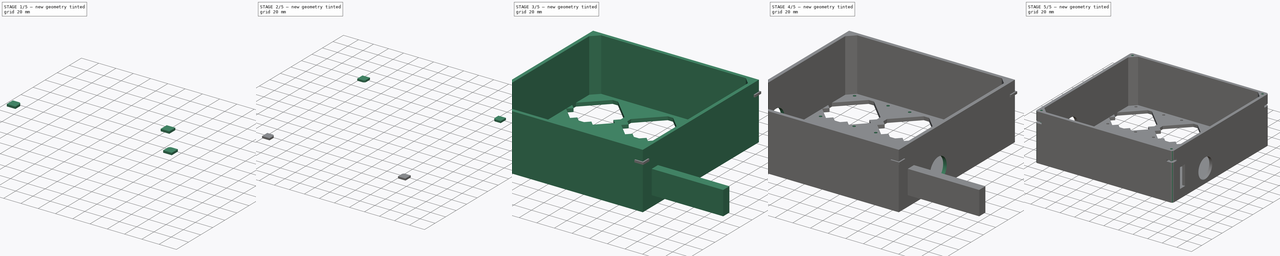
[diagram: build sequence overview — one tinted view per stage of 5, left to right]
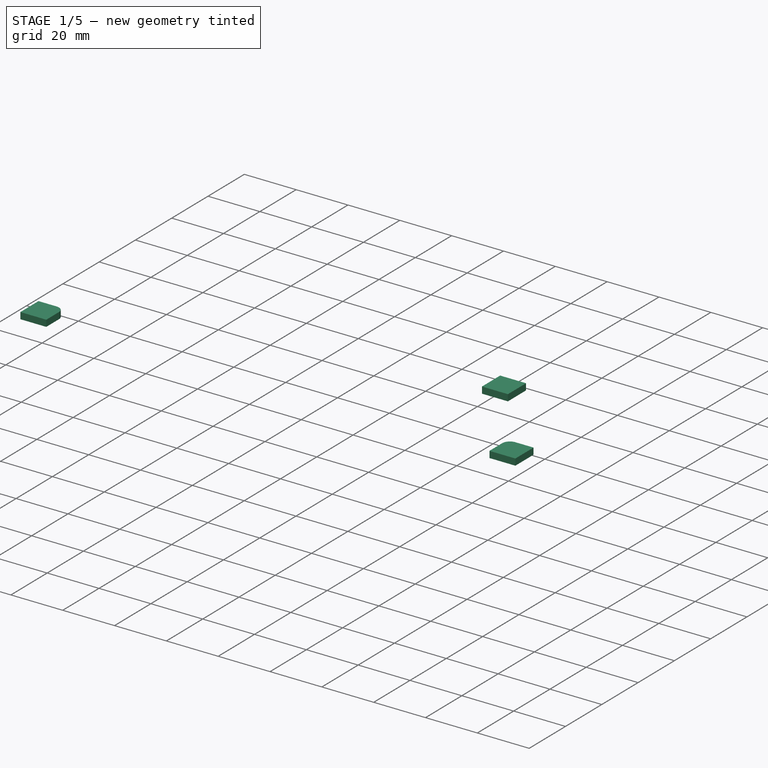
[diagram: stage 1 of 5 — iso view after this stage's code; geometry added in this stage tinted green]
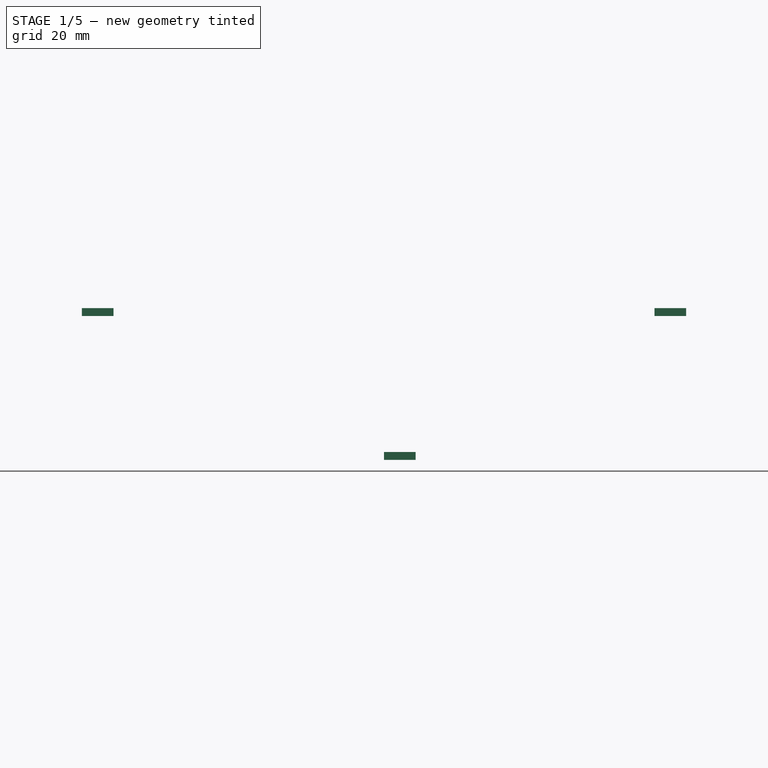
[diagram: stage 1 of 5 — front view after this stage's code; geometry added in this stage tinted green]
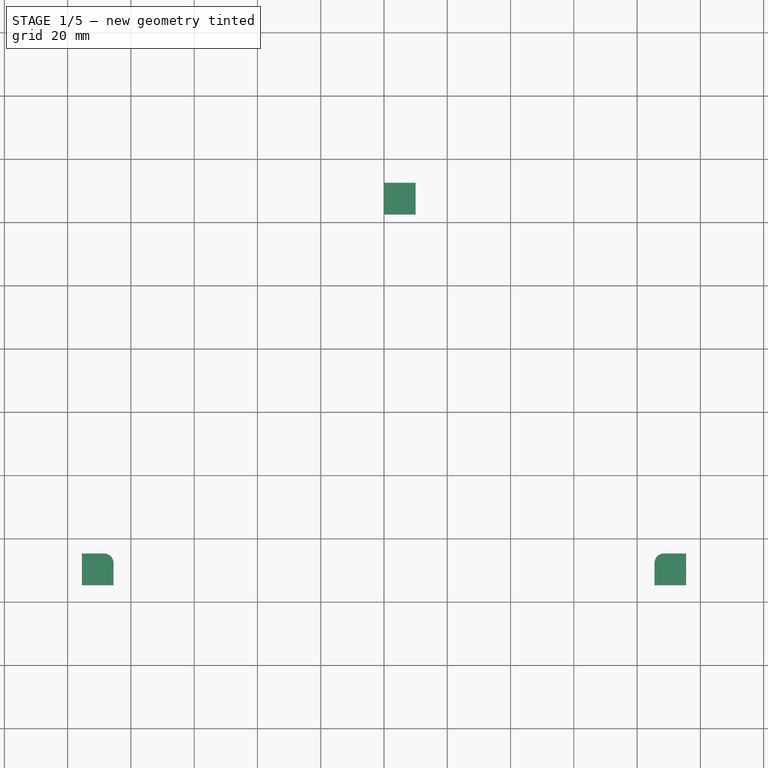
[diagram: stage 1 of 5 — top view after this stage's code; geometry added in this stage tinted green]
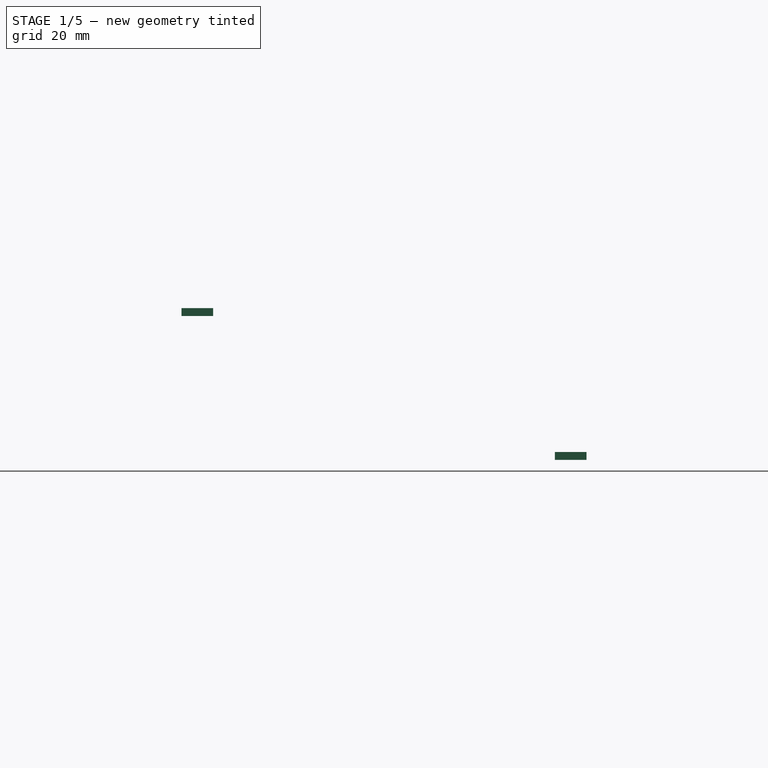
[diagram: stage 1 of 5 — right view after this stage's code; geometry added in this stage tinted green]
FCSTD DOCUMENT  (FreeCAD 0.21R33771 (Git))
Label: pumps-box-v1.0
License: All rights reserved
LicenseURL: https://en.wikipedia.org/wiki/All_rights_reserved
objects: Sketcher::SketchObject×9, PartDesign::Pocket×8, Part::Box×5, Part::Fillet×4, Part::MultiFuse×3, Part::Cut×2, PartDesign::Pad×1, PartDesign::Thickness×1, PartDesign::Chamfer×1, PartDesign::Hole×1, PartDesign::Draft×1, PartDesign::Fillet×1, PartDesign::Body×1
note: 52 computed .brp shape members not serialized (recipe doc carries the construction recipe); baked Part::Feature solids carry a one-line shape summary decoded from their .brp

FEATURE [Part::Box] Box001  label="Cube"
  AttacherType = Attacher::AttachEngine3D
  Height = 2.5
  Length = 10
  Placement = pos=(-23.5,0,0) rot=(0,0,1;0rad)
  Width = 10
FEATURE [Part::Box] Box002  label="Cube001"
  AttacherType = Attacher::AttachEngine3D
  Height = 2.5
  Length = 10
  Placement = pos=(0,22.5,0) rot=(0,0,1;0rad)
  Width = 10
FEATURE [Part::Box] Box004  label="Cube003"
  AttacherType = Attacher::AttachEngine3D
  Height = 2.5
  Length = 10
  Width = 10
FEATURE [Part::Fillet] Fillet001
  Base = -> Box001
  Edges = 1 edges r=3: [Edge7]
  Placement = pos=(-72,-95.5,45.5) rot=(0,0,1;0rad)
FEATURE [Part::Fillet] Fillet002
  Base = -> Box004
  Edges = 1 edges r=3: [Edge3]
  Placement = pos=(85.5,-95.5,45.5) rot=(0,0,1;0rad)
FEATURE [Part::MultiFuse] Fusion
  Shapes = -> [Fillet001,Fillet002]
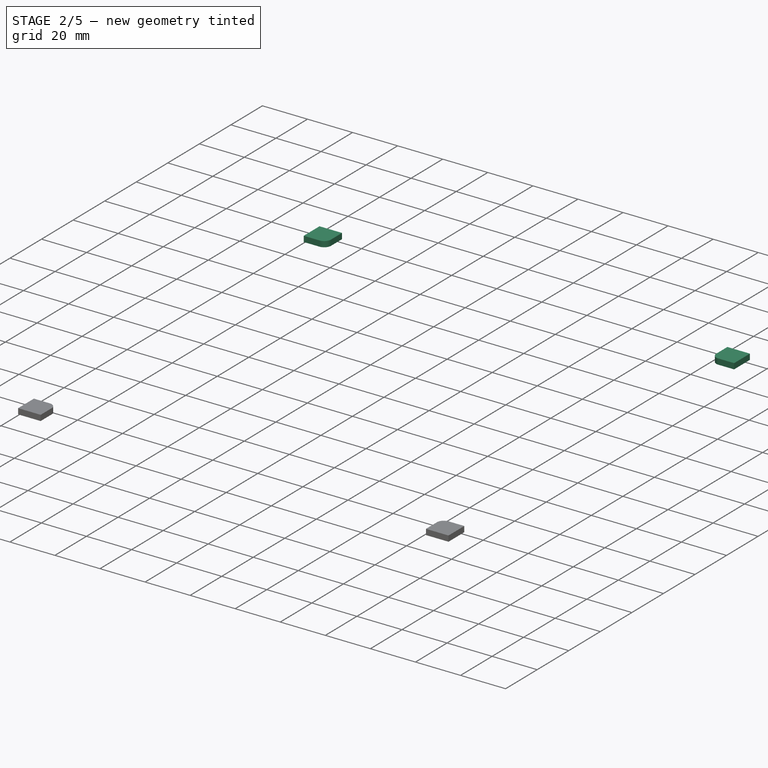
[diagram: stage 2 of 5 — iso view after this stage's code; geometry added in this stage tinted green]
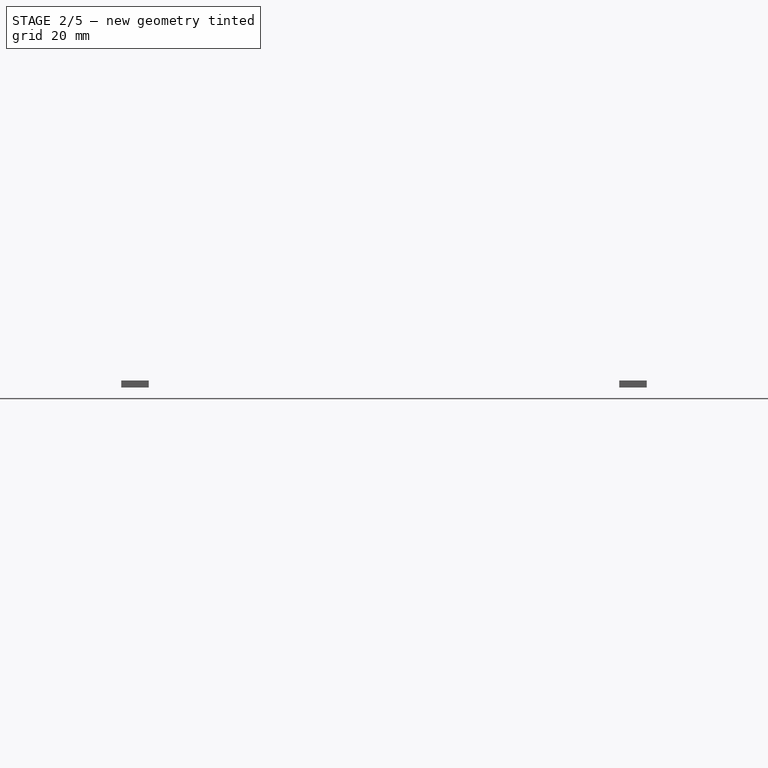
[diagram: stage 2 of 5 — front view after this stage's code; geometry added in this stage tinted green]
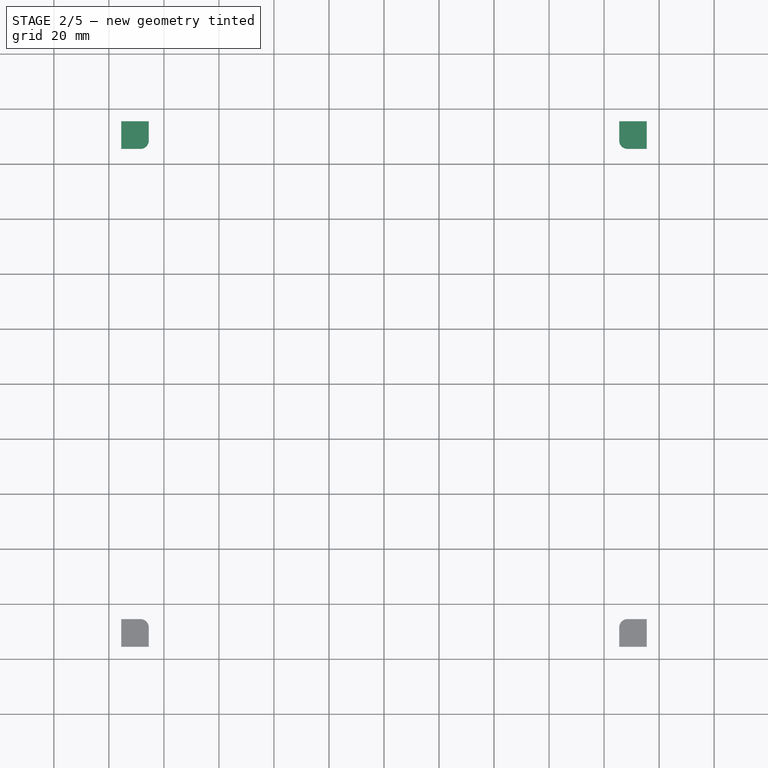
[diagram: stage 2 of 5 — top view after this stage's code; geometry added in this stage tinted green]
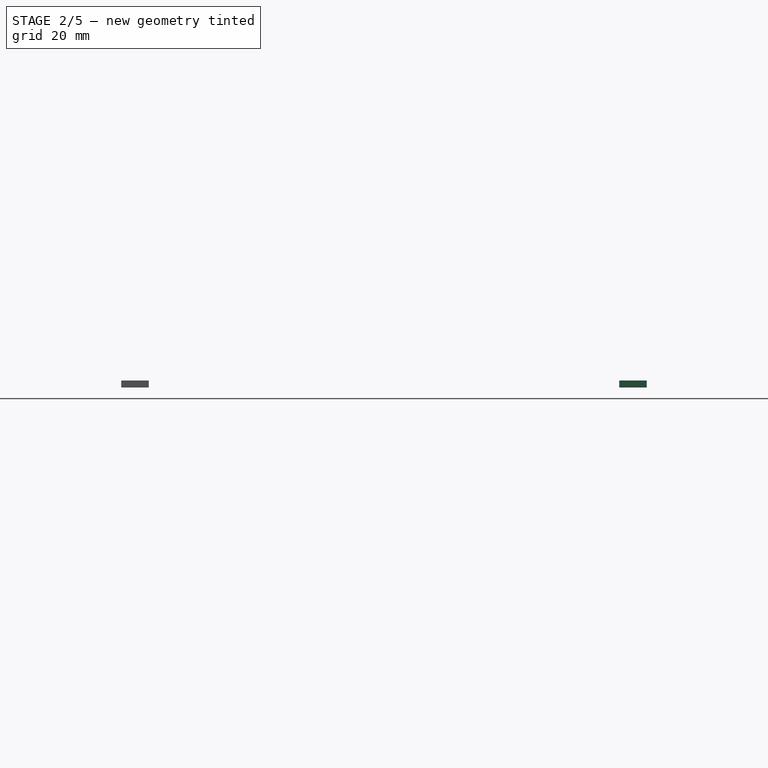
[diagram: stage 2 of 5 — right view after this stage's code; geometry added in this stage tinted green]
FEATURE [Part::Box] Box003  label="Cube002"
  AttacherType = Attacher::AttachEngine3D
  Height = 2.5
  Length = 10
  Placement = pos=(-25,23,0) rot=(0,0,1;0rad)
  Width = 10
FEATURE [Part::Fillet] Fillet003
  Base = -> Box003
  Edges = 1 edges r=3: [Edge5]
  Placement = pos=(-70.5,62.5,45.5) rot=(0,0,1;0rad)
FEATURE [Part::Fillet] Fillet004
  Base = -> Box002
  Edges = 1 edges r=3: [Edge1]
  Placement = pos=(85.5,63,45.5) rot=(0,0,1;0rad)
FEATURE [Part::MultiFuse] Fusion001
  Shapes = -> [Fusion,Fillet004]
FEATURE [Part::MultiFuse] Fusion002  label="Nut slot cuts"
  Shapes = -> [Fusion001,Fillet003]
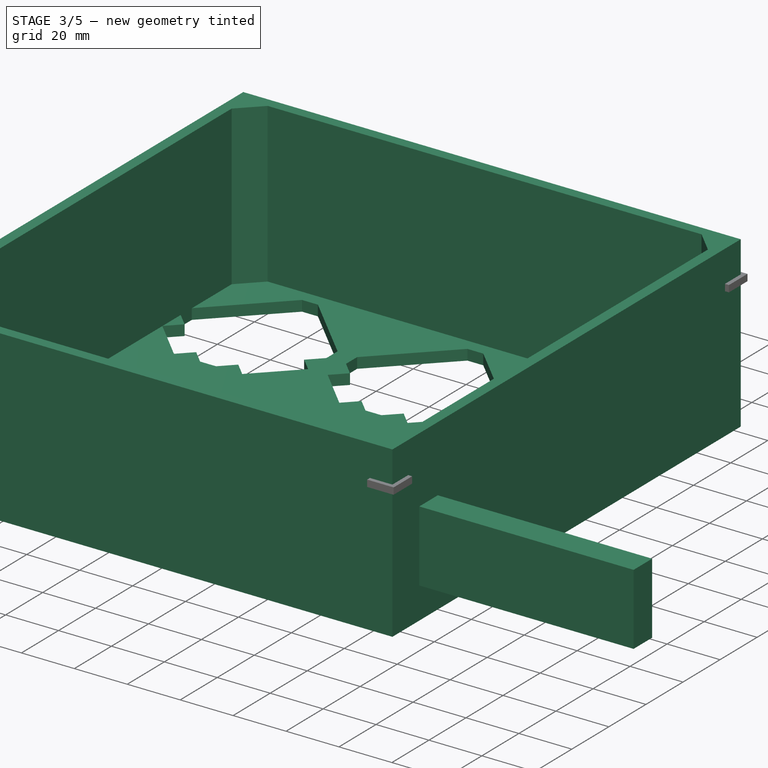
[diagram: stage 3 of 5 — iso view after this stage's code; geometry added in this stage tinted green]
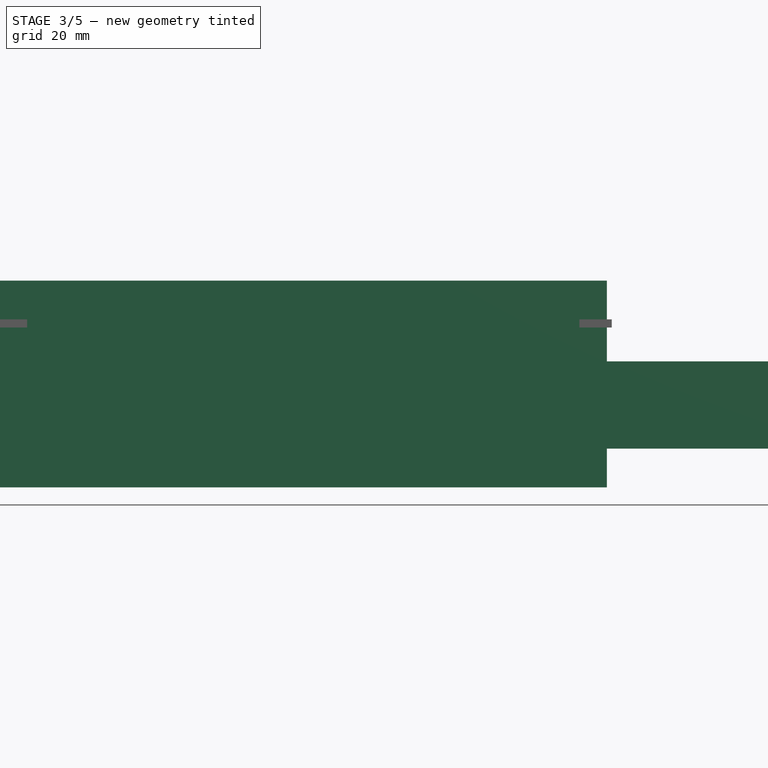
[diagram: stage 3 of 5 — front view after this stage's code; geometry added in this stage tinted green]
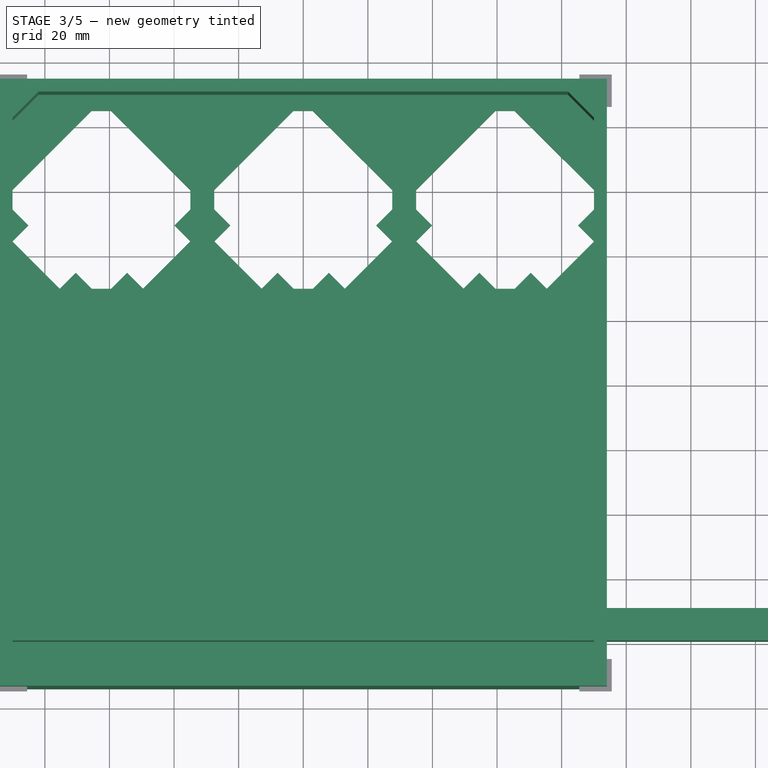
[diagram: stage 3 of 5 — top view after this stage's code; geometry added in this stage tinted green]
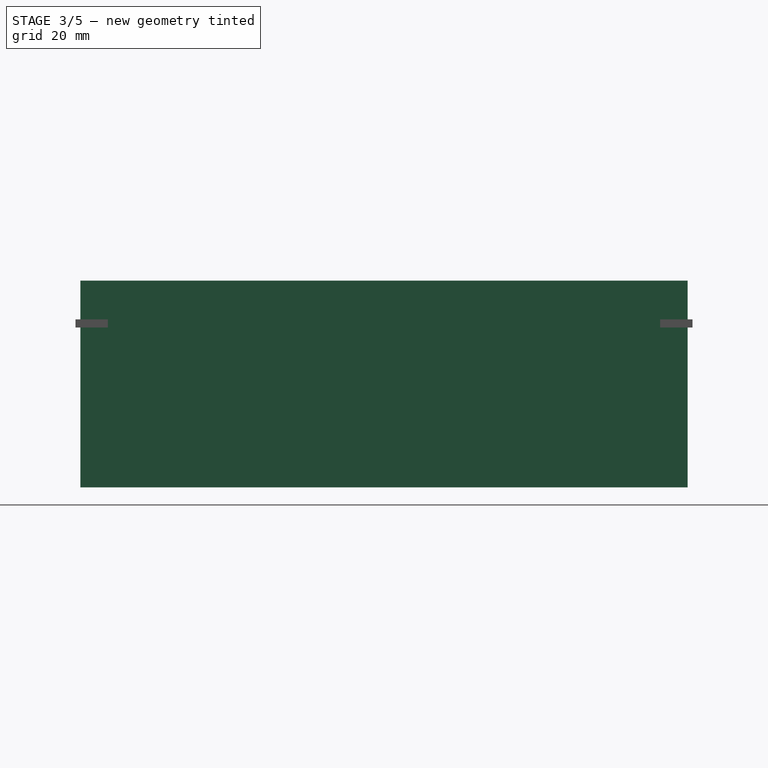
[diagram: stage 3 of 5 — right view after this stage's code; geometry added in this stage tinted green]
FEATURE [Sketcher::SketchObject] Sketch
  FullyConstrained = true
  MapMode = 5
  Support = -> [XY_Plane]
  sketch-geometry (4):
    g0: LineSegment StartX=-90 StartY=-90 StartZ=0 EndX=90 EndY=-90 EndZ=0
    g1: LineSegment StartX=90 StartY=-90 StartZ=0 EndX=90 EndY=90 EndZ=0
    g2: LineSegment StartX=90 StartY=90 StartZ=0 EndX=-90 EndY=90 EndZ=0
    g3: LineSegment StartX=-90 StartY=90 StartZ=0 EndX=-90 EndY=-90 EndZ=0
  constraints (11):
    c: Coincident(g0,g1)
    c: Coincident(g1,g2)
    c: Coincident(g2,g3)
    c: Coincident(g3,g0)
    c: Horizontal(g0)
    c: Horizontal(g2)
    c: Vertical(g1)
    c: Vertical(g3)
    c: DistanceY(g3,g3) = 180
    c: DistanceX(g0,g0) = 180
    c: Symmetric(g0,g1,g-1)
FEATURE [PartDesign::Pad] Pad
  Direction = (0,0,1)
  Length = 60
  Length2 = 10
  Profile = -> Sketch
  ReferenceAxis = -> Sketch [N_Axis]
  Type = 0
FEATURE [PartDesign::Thickness] Thickness
  Base = -> Pad [Face6]
  BaseFeature = -> Pad
  Intersection = false
  Join = 1
  Mode = 0
  SupportTransform = false
  Value = 4
FEATURE [PartDesign::Chamfer] Chamfer
  Angle = 45
  Base = -> Thickness [Edge8,Edge1,Edge2,Edge5]
  BaseFeature = -> Thickness
  ChamferType = 0
  FlipDirection = false
  Size = 8
  Size2 = 1
  SupportTransform = false
  UseAllEdges = false
FEATURE [Sketcher::SketchObject] Sketch001
  ExternalGeometry = -> [Chamfer]
  FullyConstrained = true
  MapMode = 5
  Placement = pos=(0,0,60) rot=(0,0,1;0rad)
  Support = -> [Chamfer]
  sketch-geometry (4):
    g0: Circle CenterX=-89 CenterY=-89 CenterZ=0 NormalX=0 NormalY=0 NormalZ=1 AngleXU=0 Radius=1.5
    g1: Circle CenterX=89 CenterY=-89 CenterZ=0 NormalX=0 NormalY=0 NormalZ=1 AngleXU=0 Radius=1.5
    g2: Circle CenterX=89 CenterY=89 CenterZ=0 NormalX=0 NormalY=0 NormalZ=1 AngleXU=0 Radius=1.5
    g3: Circle CenterX=-89 CenterY=89 CenterZ=0 NormalX=0 NormalY=0 NormalZ=1 AngleXU=0 Radius=1.5
  constraints (9):
    c: Equal(g3,g2)
    c: Equal(g2,g1)
    c: Equal(g1,g0)
    c: Diameter(g0) = 3
    c: DistanceX(g0,g-1) = 89
    c: DistanceY(g0,g-1) = 89
    c: Symmetric(g0,g3,g-1)
    c: Symmetric(g0,g2,g-1)
    c: Symmetric(g1,g0,g-2)
FEATURE [PartDesign::Hole] Hole
  BaseFeature = -> Chamfer
  CustomThreadClearance = 0
  Depth = 60
  DepthType = 0
  Diameter = 1.2
  DrillForDepth = false
  DrillPoint = 1
  DrillPointAngle = 118
  HoleCutCountersinkAngle = 90
  HoleCutCustomValues = false
  HoleCutDepth = 0
  HoleCutDiameter = 6.1
  HoleCutType = 0
  ModelThread = false
  Profile = -> Chamfer [Face5]
  Tapered = false
  TaperedAngle = 90
  ThreadClass = 0
  ThreadDepth = 60
  ThreadDepthType = 0
  ThreadDirection = 0
  ThreadFit = 0
  ThreadSize = 0
  ThreadType = 0
  Threaded = false
  UseCustomThreadClearance = false
  expr: Depth = 60 mm
FEATURE [Sketcher::SketchObject] Sketch003  label="Stepper Holes"
  ExternalGeometry = -> [Hole]
  FullyConstrained = true
  MapMode = 5
  Support = -> [Hole]
  sketch-geometry (48):
    g0: LineSegment StartX=-90.0507 StartY=54.5507 StartZ=0 EndX=-90.0507 EndY=60.5507 EndZ=0
    g1: LineSegment StartX=-90.0507 StartY=60.5507 StartZ=0 EndX=-65.5424 EndY=85.0591 EndZ=0
    g2: LineSegment StartX=-65.5424 StartY=85.0591 StartZ=0 EndX=-59.5424 EndY=85.0591 EndZ=0
    g3: LineSegment StartX=-59.5424 StartY=85.0591 StartZ=0 EndX=-34.9493 EndY=60.5507 EndZ=0
    g4: LineSegment StartX=-34.9493 StartY=60.5507 StartZ=0 EndX=-34.9493 EndY=54.5507 EndZ=0
    g5: LineSegment StartX=-59.5 StartY=30 StartZ=0 EndX=-65.5 EndY=30 EndZ=0
    g6: LineSegment StartX=-27.5507 StartY=60.5507 StartZ=0 EndX=-3.04243 EndY=85.0591 EndZ=0
    g7: LineSegment StartX=-3.04243 StartY=85.0591 StartZ=0 EndX=2.95757 EndY=85.0591 EndZ=0
    g8: LineSegment StartX=2.95757 StartY=85.0591 StartZ=0 EndX=27.5507 EndY=60.5507 EndZ=0
    g9: LineSegment StartX=27.5507 StartY=60.5507 StartZ=0 EndX=27.5507 EndY=54.5507 EndZ=0
    g10: LineSegment StartX=3 StartY=30 StartZ=0 EndX=-3 EndY=30 EndZ=0
    g11: LineSegment StartX=-27.5507 StartY=54.5507 StartZ=0 EndX=-27.5507 EndY=60.5507 EndZ=0
    g12: LineSegment StartX=34.9493 StartY=54.5507 StartZ=0 EndX=34.9493 EndY=60.5507 EndZ=0
    g13: LineSegment StartX=34.9493 StartY=60.5507 StartZ=0 EndX=59.4576 EndY=85.0591 EndZ=0
    g14: LineSegment StartX=59.4576 StartY=85.0591 StartZ=0 EndX=65.4576 EndY=85.0591 EndZ=0
    g15: LineSegment StartX=65.4576 StartY=85.0591 StartZ=0 EndX=90.0507 EndY=60.5507 EndZ=0
    g16: LineSegment StartX=90.0507 StartY=60.5507 StartZ=0 EndX=90.0507 EndY=54.5507 EndZ=0
    g17: LineSegment StartX=65.5 StartY=30 StartZ=0 EndX=59.5 EndY=30 EndZ=0
    g18: LineSegment StartX=-54.5503 StartY=34.9497 StartZ=0 EndX=-49.6005 EndY=30 EndZ=0
    g19: LineSegment StartX=-34.9493 StartY=44.6513 StartZ=0 EndX=-49.6005 EndY=30 EndZ=0
    g20: LineSegment StartX=-34.9493 StartY=44.6513 StartZ=0 EndX=-39.899 EndY=49.601 EndZ=0
    g21: LineSegment StartX=7.94975 StartY=34.9497 StartZ=0 EndX=12.8995 EndY=30 EndZ=0
    g22: LineSegment StartX=12.8995 StartY=30 StartZ=0 EndX=27.5507 EndY=44.6513 EndZ=0
    g23: LineSegment StartX=27.5507 StartY=44.6513 StartZ=0 EndX=22.601 EndY=49.601 EndZ=0
    g24: LineSegment StartX=70.4497 StartY=34.9497 StartZ=0 EndX=75.3995 EndY=30 EndZ=0
    g25: LineSegment StartX=75.3995 StartY=30 StartZ=0 EndX=90.0507 EndY=44.6513 EndZ=0
    g26: LineSegment StartX=90.0507 StartY=44.6513 StartZ=0 EndX=85.101 EndY=49.601 EndZ=0
    g27: LineSegment StartX=65.5 StartY=30 StartZ=0 EndX=70.4497 EndY=34.9497 EndZ=0
    g28: LineSegment StartX=85.101 StartY=49.601 StartZ=0 EndX=90.0507 EndY=54.5507 EndZ=0
    g29: LineSegment StartX=22.601 StartY=49.601 StartZ=0 EndX=27.5507 EndY=54.5507 EndZ=0
    g30: LineSegment StartX=3 StartY=30 StartZ=0 EndX=7.94975 EndY=34.9497 EndZ=0
    g31: LineSegment StartX=-59.5 StartY=30 StartZ=0 EndX=-54.5503 EndY=34.9497 EndZ=0
    g32: LineSegment StartX=-34.9493 StartY=54.5507 StartZ=0 EndX=-39.899 EndY=49.601 EndZ=0
    g33: LineSegment StartX=-85.101 StartY=49.601 StartZ=0 EndX=-90.0507 EndY=44.6513 EndZ=0
    g34: LineSegment StartX=-90.0507 StartY=44.6513 StartZ=0 EndX=-75.3995 EndY=30 EndZ=0
    g35: LineSegment StartX=-75.3995 StartY=30 StartZ=0 EndX=-70.4497 EndY=34.9497 EndZ=0
    g36: LineSegment StartX=-90.0507 StartY=54.5507 StartZ=0 EndX=-85.101 EndY=49.601 EndZ=0
    g37: LineSegment StartX=-70.4497 StartY=34.9497 StartZ=0 EndX=-65.5 EndY=30 EndZ=0
    g38: LineSegment StartX=-3 StartY=30 StartZ=0 EndX=-7.94975 EndY=34.9497 EndZ=0
    g39: LineSegment StartX=-7.94975 StartY=34.9497 StartZ=0 EndX=-12.8995 EndY=30 EndZ=0
    g40: LineSegment StartX=-12.8995 StartY=30 StartZ=0 EndX=-27.5507 EndY=44.6513 EndZ=0
    g41: LineSegment StartX=-27.5507 StartY=44.6513 StartZ=0 EndX=-22.601 EndY=49.601 EndZ=0
    g42: LineSegment StartX=-22.601 StartY=49.601 StartZ=0 EndX=-27.5507 EndY=54.5507 EndZ=0
    g43: LineSegment StartX=59.5 StartY=30 StartZ=0 EndX=54.5503 EndY=34.9497 EndZ=0
    g44: LineSegment StartX=54.5503 StartY=34.9497 StartZ=0 EndX=49.6005 EndY=30 EndZ=0
    g45: LineSegment StartX=49.6005 StartY=30 StartZ=0 EndX=34.9493 EndY=44.6513 EndZ=0
    g46: LineSegment StartX=34.9493 StartY=44.6513 StartZ=0 EndX=39.899 EndY=49.601 EndZ=0
    g47: LineSegment StartX=39.899 StartY=49.601 StartZ=0 EndX=34.9493 EndY=54.5507 EndZ=0
  constraints (144):
    c: DistanceY(g-1,g5) = 30
    c: DistanceX(g5,g-1) = 65.5
    c: DistanceY(g5,g5) = 0
    c: DistanceX(g5,g5) = 6
    c: Angle(g31,g5,g5) = 2.35619
    c: Distance(g31) = 7
    c: Distance(g18) = 7
    c: Perpendicular(g18,g31)
    c: Perpendicular(g4,g5)
    c: Perpendicular(g0,g5)
    c: Parallel(g5,g2)
    c: Coincident(g31,g5)
    c: Coincident(g18,g31)
    c: Coincident(g18,g19)
    c: Distance(g19) = 20.72
    c: Coincident(g20,g19)
    c: Distance(g32) = 7
    c: Perpendicular(g19,g18)
    c: Perpendicular(g20,g19)
    c: Distance(g20) = 7
    c: Coincident(g20,g32)
    c: Perpendicular(g32,g20)
    c: Coincident(g4,g32)
    c: Coincident(g3,g4)
    c: Distance(g4) = 6
    c: Coincident(g2,g3)
    c: Coincident(g2,g1)
    c: Coincident(g0,g1)
    c: Distance(g0) = 6
    c: Distance(g1) = 34.66
    c: Distance(g2) = 6
    c: DistanceX(g10,g-1) = 3
    c: DistanceY(g-1,g10) = 30
    c: Equal(g5,g10)
    c: Coincident(g21,g30)
    c: Coincident(g30,g10)
    c: Parallel(g5,g10)
    c: Coincident(g6,g11)
    c: Coincident(g6,g7)
    c: Coincident(g8,g7)
    c: Coincident(g9,g8)
    c: Coincident(g29,g9)
    c: Coincident(g29,g23)
    c: Coincident(g22,g23)
    c: Coincident(g22,g21)
    c: Parallel(g0,g11)
    c: Equal(g0,g11)
    c: Parallel(g1,g6)
    c: Equal(g1,g6)
    c: Equal(g2,g7)
    c: Parallel(g7,g2)
    c: Equal(g3,g8)
    c: Parallel(g3,g8)
    c: Equal(g31,g30)
    c: Parallel(g31,g30)
    c: Equal(g18,g21)
    c: Parallel(g18,g21)
    c: Equal(g19,g22)
    c: Parallel(g22,g19)
    c: Equal(g20,g23)
    c: Parallel(g20,g23)
    c: Equal(g32,g29)
    c: Parallel(g32,g29)
    c: DistanceX(g-1,g17) = 59.5
    c: DistanceY(g-1,g17) = 30
    c: Coincident(g27,g17)
    c: Coincident(g24,g27)
    c: Coincident(g24,g25)
    c: Coincident(g25,g26)
    c: Coincident(g26,g28)
    c: Coincident(g16,g28)
    c: Coincident(g15,g16)
    c: Coincident(g14,g15)
    c: Coincident(g13,g14)
    c: Coincident(g12,g13)
    c: Equal(g17,g5)
    c: Parallel(g17,g5)
    c: Equal(g0,g12)
    c: Parallel(g0,g12)
    c: Equal(g1,g13)
    c: Parallel(g1,g13)
    c: Equal(g2,g14)
    c: Parallel(g2,g14)
    c: Equal(g3,g15)
    c: Parallel(g3,g15)
    c: Equal(g4,g16)
    c: Parallel(g4,g16)
    c: Equal(g32,g28)
    c: Parallel(g32,g28)
    c: Equal(g20,g26)
    c: Parallel(g20,g26)
    c: Equal(g25,g19)
    c: Parallel(g25,g19)
    c: Equal(g24,g18)
    c: Parallel(g24,g18)
    c: Coincident(g34,g33)
    c: Coincident(g35,g34)
    c: Coincident(g36,g0)
    c: Coincident(g36,g33)
    c: Coincident(g37,g35)
    c: Coincident(g37,g5)
    c: Perpendicular(g31,g37)
    c: Distance(g37) = 7
    c: Perpendicular(g37,g35)
    c: Distance(g35) = 7
    c: Perpendicular(g35,g34)
    c: Parallel(g36,g37)
    c: Distance(g36) = 7
    c: Perpendicular(g33,g36)
    c: Distance(g33) = 7
    c: Distance(g34) = 20.72
    c: Parallel(g31,g1)
    c: Coincident(g38,g10)
    c: Coincident(g39,g38)
    c: Coincident(g40,g39)
    c: Coincident(g41,g40)
    c: Coincident(g42,g41)
    c: Coincident(g42,g11)
    c: Coincident(g43,g17)
    c: Coincident(g44,g43)
    c: Coincident(g45,g44)
    c: Coincident(g46,g45)
    c: Coincident(g47,g46)
    c: Coincident(g47,g12)
    c: Equal(g37,g38)
    c: Parallel(g37,g38)
    c: Equal(g35,g39)
    c: Parallel(g39,g35)
    c: Equal(g40,g34)
    c: Parallel(g40,g34)
    c: Equal(g33,g41)
    c: Parallel(g33,g41)
    c: Equal(g42,g36)
    c: Parallel(g36,g42)
    c: Equal(g37,g43)
    c: Parallel(g37,g43)
    c: Equal(g44,g35)
    c: Parallel(g35,g44)
    c: Perpendicular(g45,g44)
    c: Perpendicular(g46,g45)
    c: Perpendicular(g47,g46)
    c: Equal(g34,g45)
    c: Equal(g33,g46)
    c: Equal(g36,g47)
FEATURE [PartDesign::Pocket] Pocket  label="Stepper Holes001"
  BaseFeature = -> Hole
  Direction = (0,0,-1)
  Length = 5
  Length2 = 5
  Profile = -> Sketch003
  ReferenceAxis = -> Sketch003 [N_Axis]
  Type = 0
FEATURE [PartDesign::Body] Body
  Group = -> [Sketch,Pad,Thickness,Chamfer,Sketch001,Hole,Sketch003,Pocket,Sketch004,Pocket001,Sketch005,Pocket002,Sketch006,Pocket003,Sketch007,Pocket004,Sketch008,Pocket005,Draft,Pocket008,Fillet,Sketch011,Pocket009]
  Origin = -> Origin
  Tip = -> Pocket009
FEATURE [Part::Box] Box  label="Support Cut"
  AttacherType = Attacher::AttachEngine3D
  Height = 27
  Length = 300
  Placement = pos=(-125,-79.5,8) rot=(0,0,1;0rad)
  Width = 10
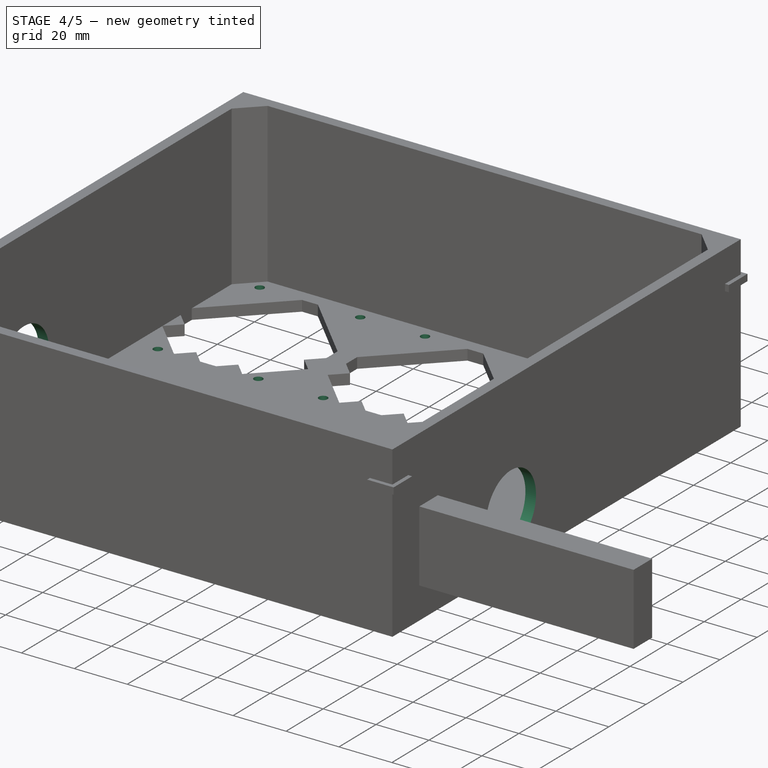
[diagram: stage 4 of 5 — iso view after this stage's code; geometry added in this stage tinted green]
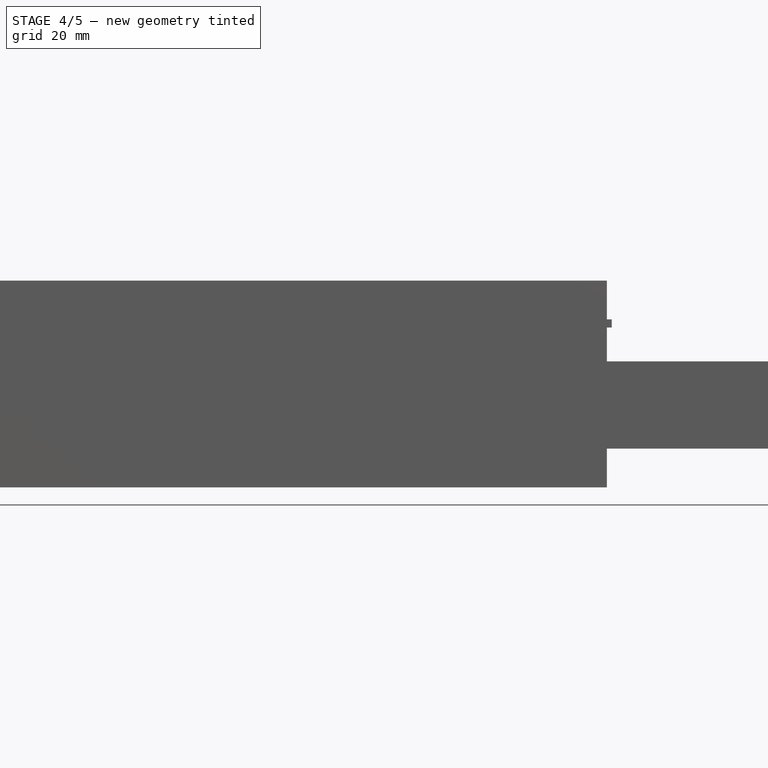
[diagram: stage 4 of 5 — front view after this stage's code; geometry added in this stage tinted green]
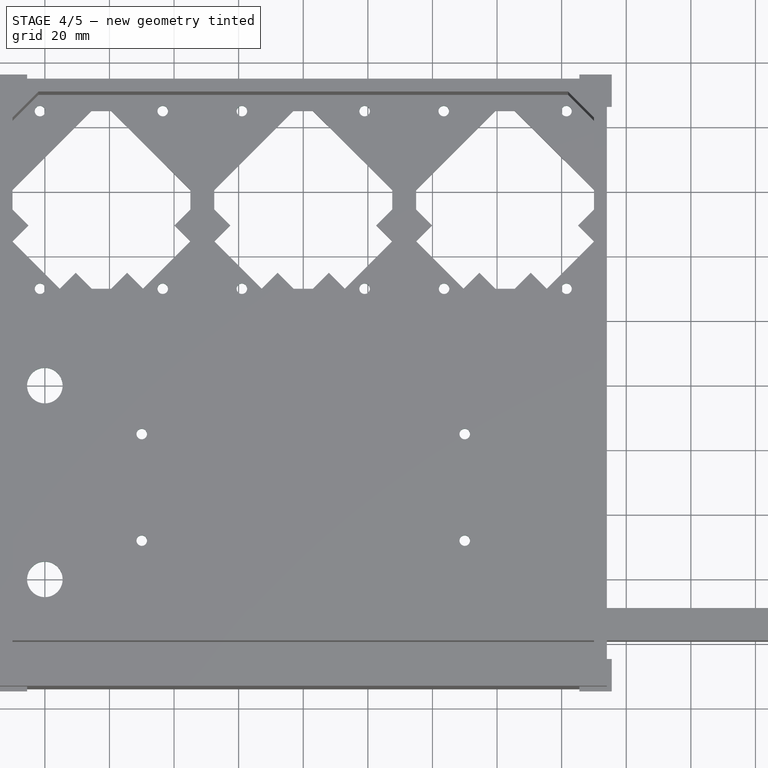
[diagram: stage 4 of 5 — top view after this stage's code; geometry added in this stage tinted green]
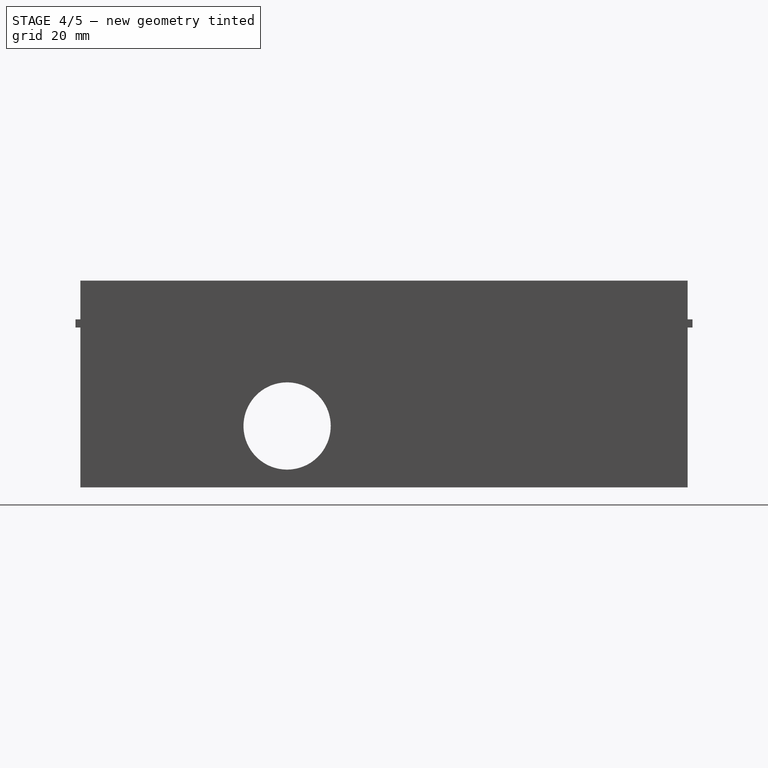
[diagram: stage 4 of 5 — right view after this stage's code; geometry added in this stage tinted green]
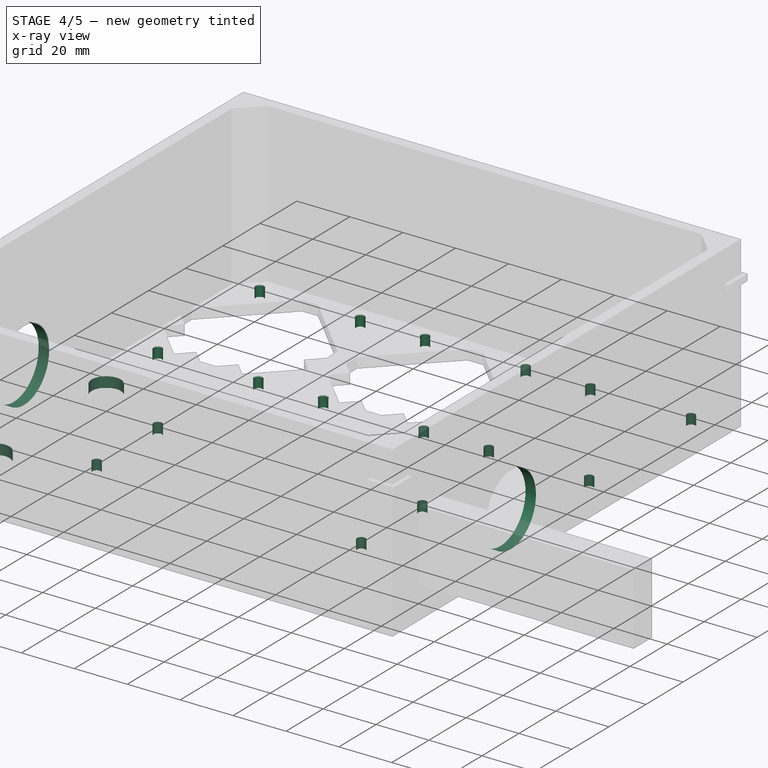
[diagram: stage 4 of 5 — x-ray composite at the iso view; earlier geometry ghosted, this stage's added geometry solid]
FEATURE [Sketcher::SketchObject] Sketch004  label="barrel plug holes"
  FullyConstrained = true
  MapMode = 5
  Support = -> [Pocket]
  sketch-geometry (2):
    g0: Circle CenterX=-80 CenterY=-60 CenterZ=0 NormalX=0 NormalY=0 NormalZ=1 AngleXU=0 Radius=5.5
    g1: Circle CenterX=-80 CenterY=0 CenterZ=0 NormalX=0 NormalY=0 NormalZ=1 AngleXU=0 Radius=5.5
  constraints (6):
    c: Equal(g1,g0)
    c: Diameter(g1) = 11
    c: DistanceY(g-1,g1) = 0
    c: DistanceY(g0,g1) = 60
    c: DistanceX(g1,g-1) = 80
    c: DistanceX(g0,g-1) = 80
FEATURE [PartDesign::Pocket] Pocket001  label="Barrel Plug Holes"
  BaseFeature = -> Pocket
  Direction = (0,0,-1)
  Length = 5
  Length2 = 5
  Profile = -> Sketch004
  ReferenceAxis = -> Sketch004 [N_Axis]
  Type = 0
FEATURE [Sketcher::SketchObject] Sketch005  label="Stepper screw holes"
  ExternalGeometry = -> [Pocket001]
  FullyConstrained = true
  MapMode = 5
  Support = -> [Pocket001]
  sketch-geometry (12):
    g0: Circle CenterX=-81.5 CenterY=30 CenterZ=0 NormalX=0 NormalY=0 NormalZ=1 AngleXU=0 Radius=1.625
    g1: Circle CenterX=-43.5 CenterY=85 CenterZ=0 NormalX=0 NormalY=0 NormalZ=1 AngleXU=0 Radius=1.625
    g2: Circle CenterX=19 CenterY=30 CenterZ=0 NormalX=0 NormalY=0 NormalZ=1 AngleXU=0 Radius=1.625
    g3: Circle CenterX=-19 CenterY=30 CenterZ=0 NormalX=0 NormalY=0 NormalZ=1 AngleXU=0 Radius=1.625
    g4: Circle CenterX=-19 CenterY=85 CenterZ=0 NormalX=0 NormalY=0 NormalZ=1 AngleXU=0 Radius=1.625
    g5: Circle CenterX=-81.5 CenterY=85 CenterZ=0 NormalX=0 NormalY=0 NormalZ=1 AngleXU=0 Radius=1.625
    g6: Circle CenterX=81.5 CenterY=85 CenterZ=0 NormalX=0 NormalY=0 NormalZ=1 AngleXU=0 Radius=1.625
    g7: Circle CenterX=-43.5 CenterY=30 CenterZ=0 NormalX=0 NormalY=0 NormalZ=1 AngleXU=0 Radius=1.625
    g8: Circle CenterX=81.5 CenterY=30 CenterZ=0 NormalX=0 NormalY=0 NormalZ=1 AngleXU=0 Radius=1.625
    g9: Circle CenterX=43.5 CenterY=85 CenterZ=0 NormalX=0 NormalY=0 NormalZ=1 AngleXU=0 Radius=1.625
    g10: Circle CenterX=43.6 CenterY=30 CenterZ=0 NormalX=0 NormalY=0 NormalZ=1 AngleXU=0 Radius=1.625
    g11: Circle CenterX=19 CenterY=85 CenterZ=0 NormalX=0 NormalY=0 NormalZ=1 AngleXU=0 Radius=1.625
  constraints (31):
    c: Equal(g1,g2)
    c: Equal(g1,g4)
    c: Equal(g1, g6-g11) x6
    c: Equal(g1,g0)
    c: Diameter(g1) = 3.25
    c: DistanceY(g-1,g11) = 85
    c: DistanceY(g-1,g4) = 85
    c: DistanceX(g5,g0) = 0
    c: DistanceY(g-1,g0) = 30
    c: DistanceY(g-1,g7) = 30
    c: DistanceX(g7,g-1) = 43.5
    c: DistanceX(g5,g-1) = 81.5
    c: DistanceY(g-1,g1) = 85
    c: DistanceX(g1,g-1) = 43.5
    c: DistanceY(g-1,g5) = 85
    c: DistanceY(g-1,g2) = 30
    c: DistanceY(g-1,g10) = 30
    c: DistanceY(g-1,g8) = 30
    c: DistanceY(g9) = 85
    c: DistanceY(g-1,g6) = 85
    c: DistanceX(g4,g-1) = 19
    c: DistanceX(g-1,g11) = 19
    c: DistanceX(g3,g-1) = 19
    c: DistanceX(g-1,g2) = 19
    c: DistanceX(g-1,g10) = 43.6
    c: DistanceX(g-1,g8) = 81.5
    c: DistanceX(g-1,g6) = 81.5
    c: DistanceX(g-1,g9) = 43.5
    c: DistanceY(g-1,g3) = 30
    c: Diameter(g3) = 3.25
    c: Diameter(g5) = 3.25
FEATURE [PartDesign::Pocket] Pocket002  label="Stepper Screw Holes"
  BaseFeature = -> Pocket001
  Direction = (0,0,-1)
  Length = 5
  Length2 = 5
  Profile = -> Sketch005
  ReferenceAxis = -> Sketch005 [N_Axis]
  Type = 0
FEATURE [Sketcher::SketchObject] Sketch006
  ExternalGeometry = -> [Pocket002]
  FullyConstrained = true
  MapMode = 5
  Placement = pos=(-90,0,0) rot=(0.57735,0.57735,0.57735;2.0944rad)
  Support = -> [Pocket002]
  sketch-geometry (1):
    g0: Circle CenterX=-30 CenterY=15 CenterZ=0 NormalX=0 NormalY=0 NormalZ=1 AngleXU=0 Radius=13.5
  constraints (3):
    c: Diameter(g0) = 27
    c: DistanceY(g-1,g0) = 15
    c: DistanceX(g0,g-1) = 30
FEATURE [PartDesign::Pocket] Pocket003  label="Pump Hole 1"
  BaseFeature = -> Pocket002
  Direction = (-1,0,0)
  Length = 5
  Length2 = 5
  Profile = -> Sketch006
  ReferenceAxis = -> Sketch006 [N_Axis]
  Type = 0
FEATURE [Sketcher::SketchObject] Sketch007
  FullyConstrained = true
  MapMode = 5
  Placement = pos=(90,0,0) rot=(0.57735,-0.57735,-0.57735;2.0944rad)
  Support = -> [Pocket003]
  sketch-geometry (1):
    g0: Circle CenterX=30 CenterY=15 CenterZ=0 NormalX=0 NormalY=0 NormalZ=1 AngleXU=0 Radius=13.5
  constraints (3):
    c: Diameter(g0) = 27
    c: DistanceX(g-1,g0) = 30
    c: DistanceY(g-1,g0) = 15
FEATURE [PartDesign::Pocket] Pocket004  label="Pump Hole 2"
  BaseFeature = -> Pocket003
  Direction = (1,0,0)
  Length = 5
  Length2 = 5
  Profile = -> Sketch007
  ReferenceAxis = -> Sketch007 [N_Axis]
  Type = 0
FEATURE [Sketcher::SketchObject] Sketch008
  FullyConstrained = true
  MapMode = 5
  Support = -> [Pocket004]
  sketch-geometry (4):
    g0: Circle CenterX=-50 CenterY=-15 CenterZ=0 NormalX=0 NormalY=0 NormalZ=1 AngleXU=0 Radius=1.625
    g1: Circle CenterX=-50 CenterY=-48 CenterZ=0 NormalX=0 NormalY=0 NormalZ=1 AngleXU=0 Radius=1.625
    g2: Circle CenterX=50 CenterY=-15 CenterZ=0 NormalX=0 NormalY=0 NormalZ=1 AngleXU=0 Radius=1.625
    g3: Circle CenterX=50 CenterY=-48 CenterZ=0 NormalX=0 NormalY=0 NormalZ=1 AngleXU=0 Radius=1.625
  constraints (14):
    c: Equal(g1,g0)
    c: Equal(g1,g3)
    c: Equal(g1,g2)
    c: Diameter(g1) = 3.25
    c: DistanceY(g0,g-1) = 15
    c: DistanceY(g1,g0) = 33
    c: DistanceY(g2,g-1) = 15
    c: DistanceY(g3,g2) = 33
    c: Symmetric(g0,g2,g-2)
    c: Symmetric(g1,g3,g-2)
    c: DistanceX(g0,g-1) = 50
    c: DistanceX(g1,g0) = 0
    c: DistanceX(g3,g2) = 0
    c: DistanceX(g-1,g2) = 50
FEATURE [PartDesign::Pocket] Pocket005  label="Circulation pump holes"
  BaseFeature = -> Pocket004
  Direction = (0,0,-1)
  Length = 5
  Length2 = 5
  Profile = -> Sketch008
  ReferenceAxis = -> Sketch008 [N_Axis]
  Type = 0
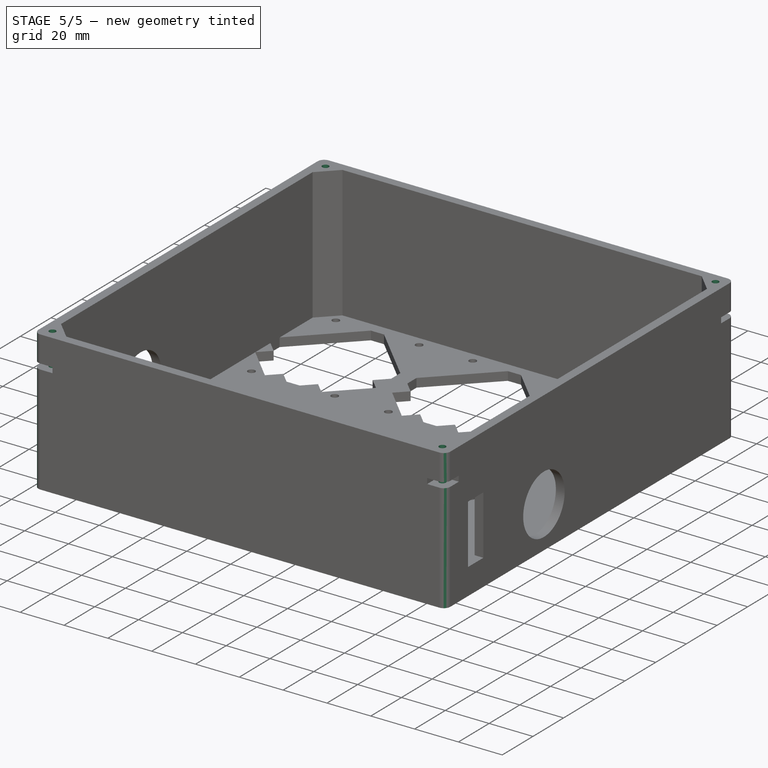
[diagram: stage 5 of 5 — iso view after this stage's code; geometry added in this stage tinted green]
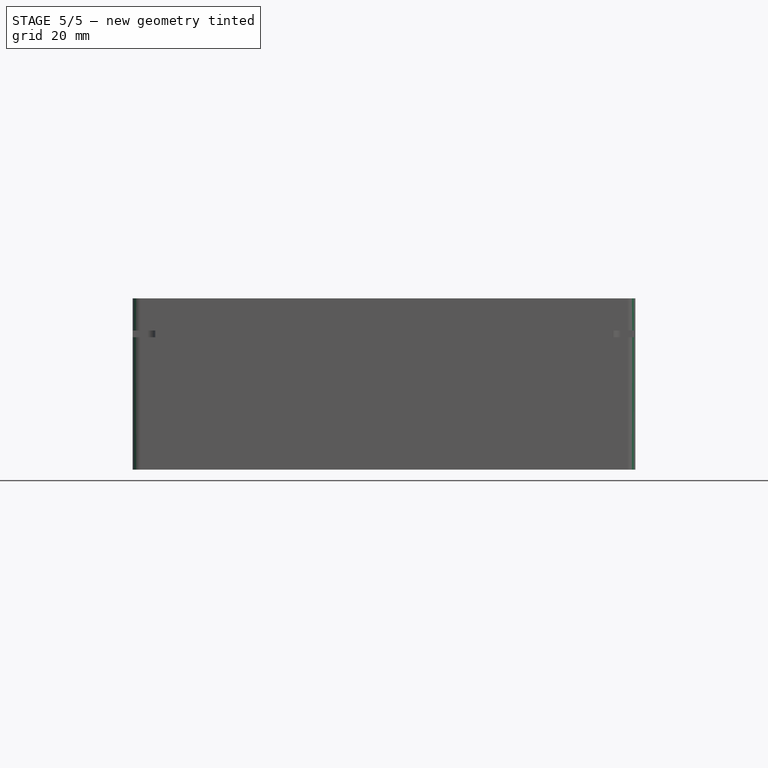
[diagram: stage 5 of 5 — front view after this stage's code; geometry added in this stage tinted green]
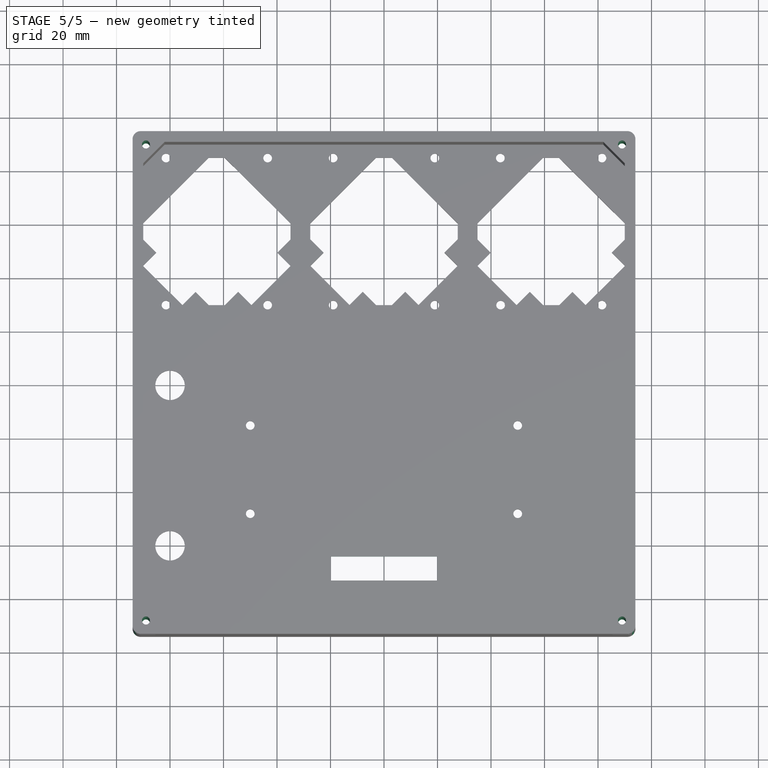
[diagram: stage 5 of 5 — top view after this stage's code; geometry added in this stage tinted green]
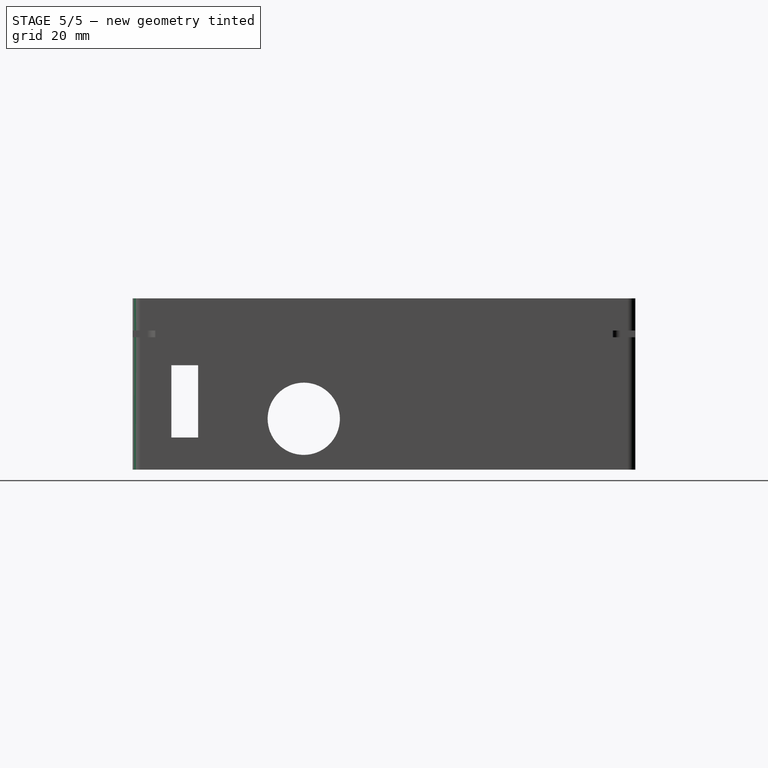
[diagram: stage 5 of 5 — right view after this stage's code; geometry added in this stage tinted green]
FEATURE [PartDesign::Draft] Draft
  Angle = 1.5
  Base = -> Pocket005
  BaseFeature = -> Pocket005
  SupportTransform = false
FEATURE [PartDesign::Pocket] Pocket008  label="Corner Screw Holes"
  BaseFeature = -> Draft
  Direction = (0,0,-1)
  Length = 5
  Length2 = 5
  Profile = -> Sketch001
  ReferenceAxis = -> Sketch001 [N_Axis]
  Type = 1
FEATURE [PartDesign::Fillet] Fillet
  Base = -> Pocket008 [Edge236,Edge233,Edge231,Edge229]
  BaseFeature = -> Pocket008
  Radius = 3
  SupportTransform = false
  UseAllEdges = false
FEATURE [Sketcher::SketchObject] Sketch011
  FullyConstrained = true
  MapMode = 5
  Placement = pos=(0,0,-4) rot=(1,0,0;3.14159rad)
  Support = -> [Fillet]
  sketch-geometry (4):
    g0: LineSegment StartX=20 StartY=64 StartZ=0 EndX=-20 EndY=64 EndZ=0
    g1: LineSegment StartX=-20 StartY=64 StartZ=0 EndX=-20 EndY=73 EndZ=0
    g2: LineSegment StartX=-20 StartY=73 StartZ=0 EndX=20 EndY=73 EndZ=0
    g3: LineSegment StartX=20 StartY=73 StartZ=0 EndX=20 EndY=64 EndZ=0
  constraints (11):
    c: Coincident(g0,g1)
    c: Coincident(g1,g2)
    c: Coincident(g2,g3)
    c: Coincident(g3,g0)
    c: Horizontal(g0)
    c: Vertical(g1)
    c: Vertical(g3)
    c: Distance(g0) = 40
    c: Distance(g1) = 9
    c: DistanceY(g-1,g0) = 64
    c: Symmetric(g1,g2,g-2)
FEATURE [PartDesign::Pocket] Pocket009  label="c-support hole"
  BaseFeature = -> Fillet
  Direction = (0,0,1)
  Length = 5
  Length2 = 5
  Profile = -> Sketch011
  ReferenceAxis = -> Sketch011 [N_Axis]
  Type = 0
FEATURE [Part::Cut] Cut  label="Pumps Box Body"
  Base = -> Body
  Tool = -> Box
FEATURE [Part::Cut] Cut001  label="Pumps Box with Cuts"
  Base = -> Cut
  Tool = -> Fusion002
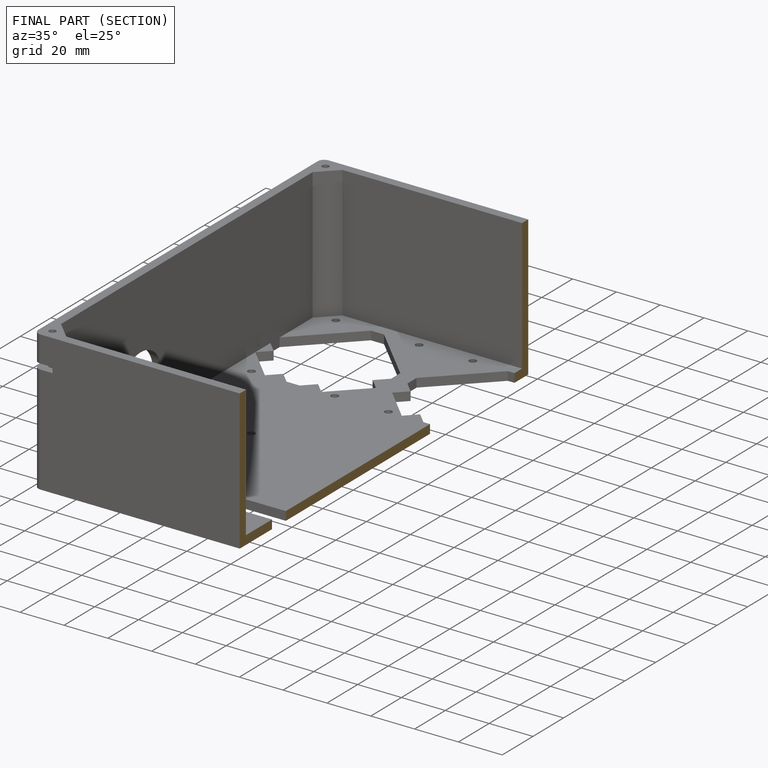
[diagram: finished part — half-section view (interior)]
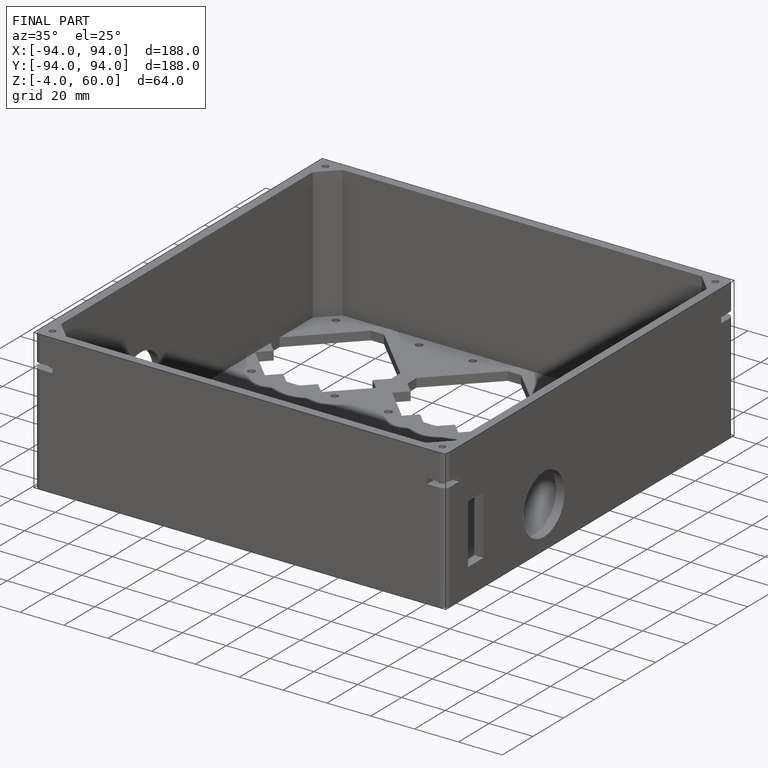
[diagram: finished part — iso view with bounding-box wireframe]
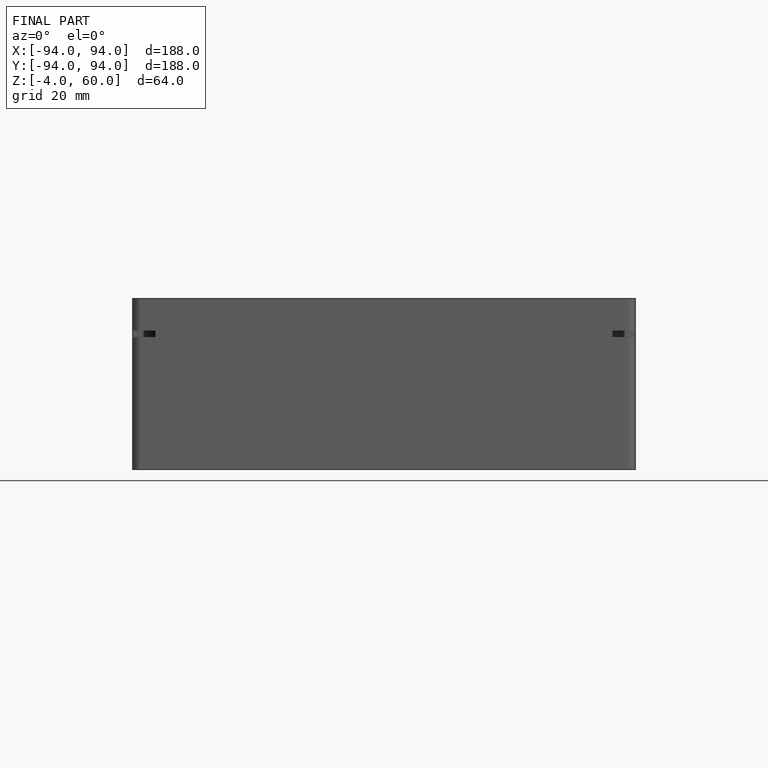
[diagram: finished part — front view with bounding-box wireframe]
